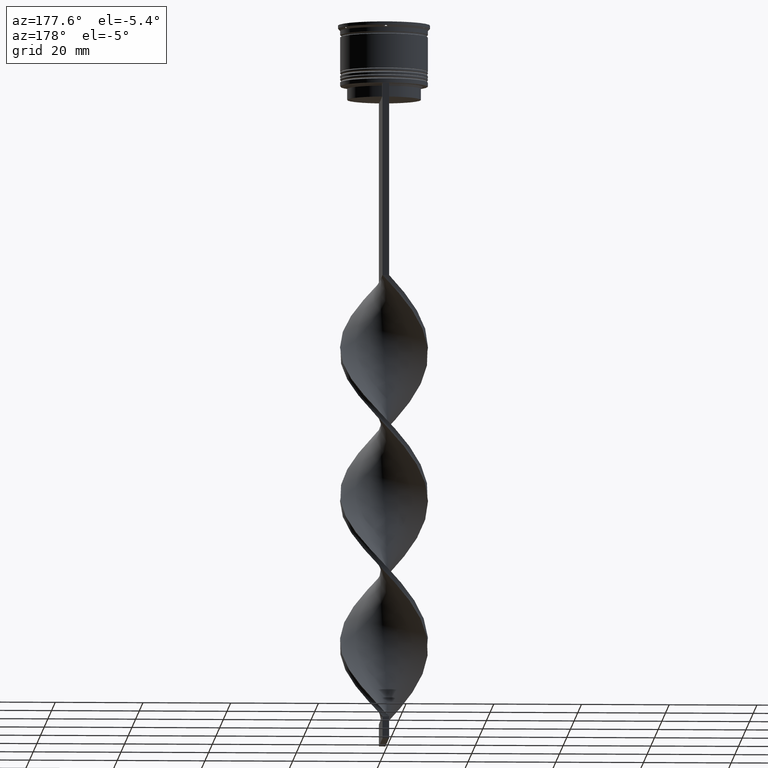
[diagram: clean part render]
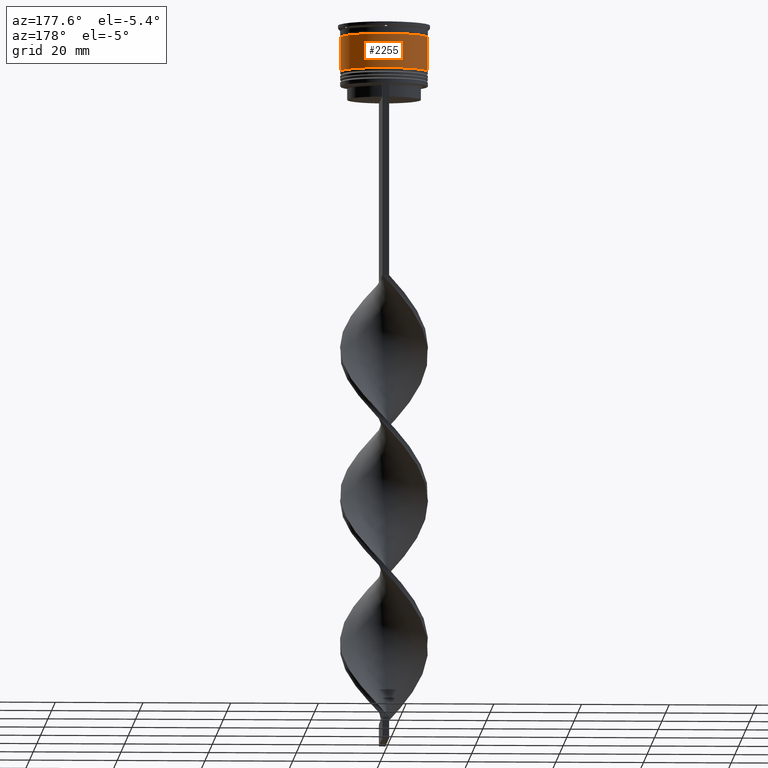
[diagram: same view with one face highlighted and labeled with its STEP entity id]
A machine part, auxiliary view. The second image highlights one B-rep face of the part: STEP entity #2255.
In plain terms, the highlighted cylindrical surface (partial cylindrical patch) has radius 10 mm, axis along (-0, -0, 1).
Its self-contained STEP definition (entity closure, byte-faithful):
#64 = ORIENTED_EDGE ( 'NONE', *, *, #1828, .F. ) ;
#135 = VECTOR ( 'NONE', #1014, 1000.000000000000000 ) ;
#219 = DIRECTION ( 'NONE',  ( -0.000000000000000000, -0.000000000000000000, 1.000000000000000000 ) ) ;
#285 = VERTEX_POINT ( 'NONE', #2729 ) ;
#300 = EDGE_CURVE ( 'NONE', #3012, #285, #2099, .T. ) ;
#491 = CARTESIAN_POINT ( 'NONE',  ( 10.00000000000000178, 0.000000000000000000, -10.50000000000000000 ) ) ;
#655 = CARTESIAN_POINT ( 'NONE',  ( 0.000000000000000000, 0.000000000000000000, -2.700000000000001954 ) ) ;
#820 = CARTESIAN_POINT ( 'NONE',  ( -10.00000000000000178, 1.224646799147353454E-15, -10.50000000000000000 ) ) ;
#857 = DIRECTION ( 'NONE',  ( -0.000000000000000000, -0.000000000000000000, 1.000000000000000000 ) ) ;
#1014 = DIRECTION ( 'NONE',  ( -0.000000000000000000, -0.000000000000000000, 1.000000000000000000 ) ) ;
#1221 = AXIS2_PLACEMENT_3D ( 'NONE', #2091, #219, #1497 ) ;
#1394 = ORIENTED_EDGE ( 'NONE', *, *, #3551, .F. ) ;
#1460 = FACE_OUTER_BOUND ( 'NONE', #2287, .T. ) ;
#1497 = DIRECTION ( 'NONE',  ( 1.000000000000000000, 0.000000000000000000, 0.000000000000000000 ) ) ;
#1671 = CIRCLE ( 'NONE', #3889, 9.999999999999998224 ) ;
#1828 = EDGE_CURVE ( 'NONE', #2455, #2820, #2522, .T. ) ;
#2054 = CIRCLE ( 'NONE', #1221, 10.00000000000000178 ) ;
#2076 = DIRECTION ( 'NONE',  ( 1.000000000000000000, 0.000000000000000000, 0.000000000000000000 ) ) ;
#2091 = CARTESIAN_POINT ( 'NONE',  ( 0.000000000000000000, 0.000000000000000000, -10.50000000000000000 ) ) ;
#2099 = LINE ( 'NONE', #3919, #2406 ) ;
#2255 = ADVANCED_FACE ( 'NONE', ( #1460 ), #2670, .T. ) ;
#2287 = EDGE_LOOP ( 'NONE', ( #3845, #2888, #1394, #64 ) ) ;
#2406 = VECTOR ( 'NONE', #3349, 1000.000000000000000 ) ;
#2455 = VERTEX_POINT ( 'NONE', #491 ) ;
#2522 = LINE ( 'NONE', #2842, #135 ) ;
#2616 = AXIS2_PLACEMENT_3D ( 'NONE', #3586, #857, #2076 ) ;
#2670 = CYLINDRICAL_SURFACE ( 'NONE', #2616, 10.00000000000000000 ) ;
#2729 = CARTESIAN_POINT ( 'NONE',  ( -9.999999999999998224, 1.224646799147353256E-15, -2.700000000000001954 ) ) ;
#2767 = DIRECTION ( 'NONE',  ( -0.000000000000000000, -0.000000000000000000, 1.000000000000000000 ) ) ;
#2820 = VERTEX_POINT ( 'NONE', #3475 ) ;
#2842 = CARTESIAN_POINT ( 'NONE',  ( 10.00000000000000000, 0.000000000000000000, 0.000000000000000000 ) ) ;
#2888 = ORIENTED_EDGE ( 'NONE', *, *, #300, .T. ) ;
#3012 = VERTEX_POINT ( 'NONE', #820 ) ;
#3091 = DIRECTION ( 'NONE',  ( 1.000000000000000000, 0.000000000000000000, 0.000000000000000000 ) ) ;
#3349 = DIRECTION ( 'NONE',  ( -0.000000000000000000, -0.000000000000000000, 1.000000000000000000 ) ) ;
#3360 = EDGE_CURVE ( 'NONE', #2455, #3012, #2054, .T. ) ;
#3475 = CARTESIAN_POINT ( 'NONE',  ( 9.999999999999998224, 0.000000000000000000, -2.700000000000001954 ) ) ;
#3551 = EDGE_CURVE ( 'NONE', #2820, #285, #1671, .T. ) ;
#3586 = CARTESIAN_POINT ( 'NONE',  ( 0.000000000000000000, 0.000000000000000000, 0.000000000000000000 ) ) ;
#3845 = ORIENTED_EDGE ( 'NONE', *, *, #3360, .T. ) ;
#3889 = AXIS2_PLACEMENT_3D ( 'NONE', #655, #2767, #3091 ) ;
#3919 = CARTESIAN_POINT ( 'NONE',  ( -10.00000000000000000, 1.224646799147353256E-15, 0.000000000000000000 ) ) ;